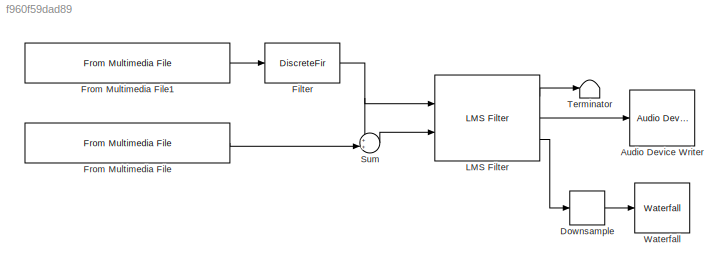
MODEL slx_f960f59dad89
KIND model
CONFIG AbsTol = auto
CONFIG EnableMultiTasking = on
CONFIG FixedStep = auto
CONFIG MaxStep = auto
CONFIG MinStep = auto
CONFIG RelTol = 1e-3
CONFIG SampleTimeConstraint = Unconstrained
CONFIG Solver = ode45
CONFIG SolverName = ode45
CONFIG StartTime = 0.0
CONFIG StopTime = 20
BLOCK [Reference] Audio Device Writer  REF=dspsnks4/Audio Device
Writer
  Ports = [1]
  SourceBlock = dspsnks4/Audio Device\nWriter
  SourceProductBaseCode = DS
  SourceType = Audio Device Writer
BLOCK [DownSample] Downsample
  InputProcessing = Elements as channels (sample based)
  N = 32
  RateOptions = Allow multirate processing
  UserDataPersistent = on
BLOCK [DiscreteFir] Filter
  Coefficients = [-7.31261440035516682e-05 -9.31955213052300944e-05 -3.06044825197509959e-05 0.000164179418333110396 0.000416447028969218211 0.000517314220350287984 0.000228928280019854242 -0.000504581007832899625 -0.00137399283301260712 -0.00173741793869143534 -0.000966385776089857145 0.0010200443535864506 0.00338282318454040647 0.00453954447297958384 0.00301318160864911134 -0.00140052295368660882 -0.006896833887...<+1089ch>
  InputPortMap = u0
  InputProcessing = Columns as channels (frame based)
  OutputPortMap = o0
  Ports = [1, 1]
  Tag = BlockMethodSubSystem
BLOCK [Reference] From Multimedia File  REF=dspvision/From Multimedia File
  Ports = [0, 1]
  SourceBlock = dspvision/From Multimedia File
  SourceProductBaseCode = DS,HW,VP
  SourceType = From Multimedia File
BLOCK [Reference] From Multimedia File1  REF=dspvision/From Multimedia File
  Ports = [0, 1]
  SourceBlock = dspvision/From Multimedia File
  SourceProductBaseCode = DS,HW,VP
  SourceType = From Multimedia File
BLOCK [Reference] LMS Filter  REF=dspadpt3/LMS Filter
  Ports = [2, 3]
  SourceBlock = dspadpt3/LMS Filter
  SourceProductBaseCode = DS
  SourceType = LMS Filter
BLOCK [Sum] Sum
  Inputs = ++|
  Ports = [2, 1]
BLOCK [Terminator] Terminator
BLOCK [Reference] Waterfall  REF=dspsnks4/Waterfall
  Ports = [1]
  SourceBlock = dspsnks4/Waterfall
  SourceProductBaseCode = DS
  SourceType = Waterfall
LINE Downsample:1 -> Waterfall:1
NET Filter:1 -> LMS Filter:1, Sum:1
LINE From Multimedia File1:1 -> Filter:1
LINE From Multimedia File:1 -> Sum:2
LINE LMS Filter:1 -> Terminator:1
LINE LMS Filter:2 -> Audio Device Writer:1
LINE LMS Filter:3 -> Downsample:1
LINE Sum:1 -> LMS Filter:2
note: NET lines group one-source signal fan-out (src -> all destinations, sorted); 1:1 wires keep LINE
